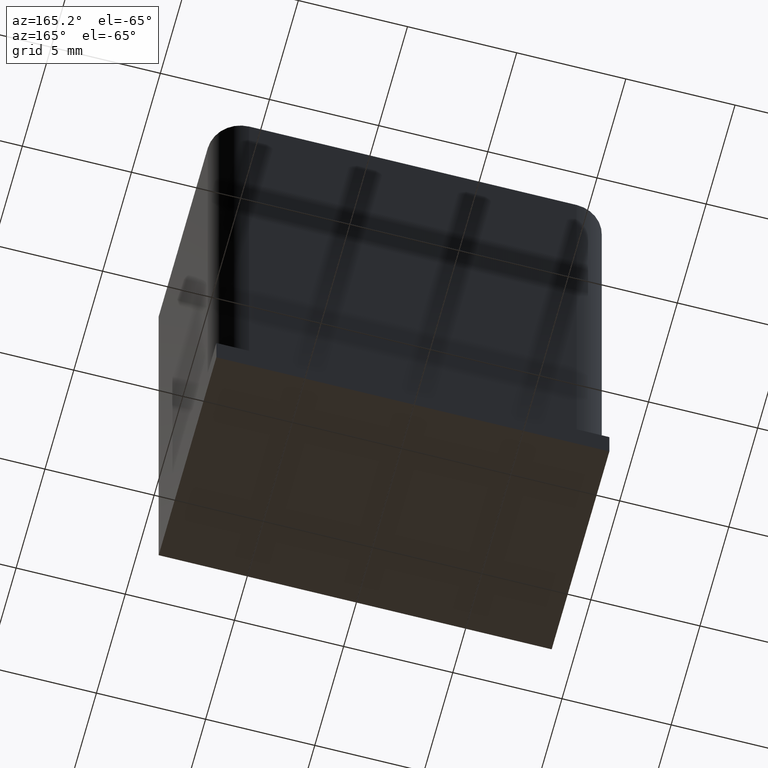
[diagram: clean part render]
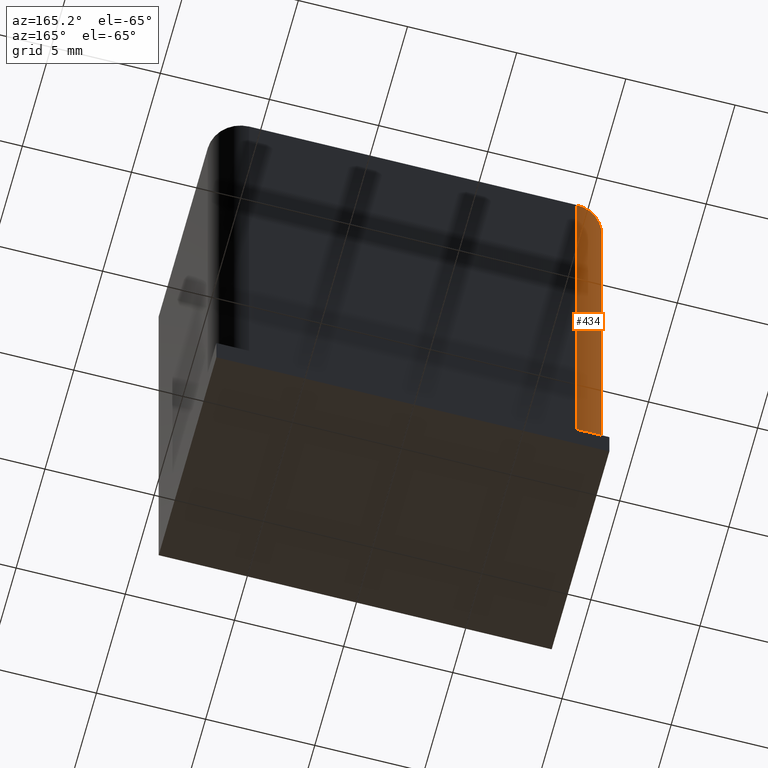
[diagram: same view with one face highlighted and labeled with its STEP entity id]
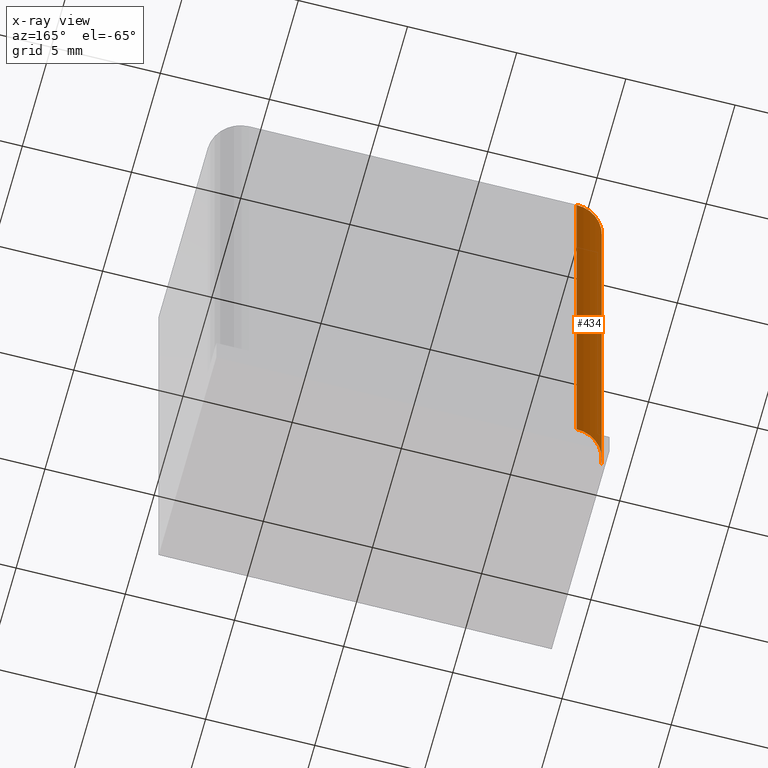
[diagram: x-ray of the same camera — body ghosted, the highlighted face saturated]
A machine part, auxiliary view. The second image highlights one B-rep face of the part: STEP entity #434.
The next image is the same camera in x-ray: the body ghosted, the highlighted face saturated — about 0% of this face is hidden behind the body in this view.
In plain terms, the highlighted cylindrical surface (edge-blend (fillet) strip) has radius 1.5 mm, axis along (0, 0, 1).
Its self-contained STEP definition (entity closure, byte-faithful):
#61=FACE_OUTER_BOUND('',#91,.T.);
#91=EDGE_LOOP('',(#345,#346,#347,#348));
#123=LINE('',#728,#170);
#124=LINE('',#731,#171);
#170=VECTOR('',#604,10.);
#171=VECTOR('',#607,10.);
#208=CIRCLE('',#531,1.5);
#209=CIRCLE('',#532,1.5);
#226=VERTEX_POINT('',#724);
#227=VERTEX_POINT('',#725);
#228=VERTEX_POINT('',#727);
#229=VERTEX_POINT('',#729);
#271=EDGE_CURVE('',#226,#227,#208,.T.);
#272=EDGE_CURVE('',#226,#228,#123,.T.);
#273=EDGE_CURVE('',#229,#228,#209,.T.);
#274=EDGE_CURVE('',#227,#229,#124,.T.);
#345=ORIENTED_EDGE('',*,*,#271,.F.);
#346=ORIENTED_EDGE('',*,*,#272,.T.);
#347=ORIENTED_EDGE('',*,*,#273,.F.);
#348=ORIENTED_EDGE('',*,*,#274,.F.);
#424=CYLINDRICAL_SURFACE('',#530,1.5);
#434=ADVANCED_FACE('',(#61),#424,.T.);
#530=AXIS2_PLACEMENT_3D('',#723,#600,#601);
#531=AXIS2_PLACEMENT_3D('',#726,#602,#603);
#532=AXIS2_PLACEMENT_3D('',#730,#605,#606);
#600=DIRECTION('center_axis',(0.,0.,1.));
#601=DIRECTION('ref_axis',(7.40148683083437E-16,-1.,0.));
#602=DIRECTION('center_axis',(0.,0.,-1.));
#603=DIRECTION('ref_axis',(7.40148683083437E-16,-1.,0.));
#604=DIRECTION('',(0.,0.,1.));
#605=DIRECTION('center_axis',(0.,0.,1.));
#606=DIRECTION('ref_axis',(7.40148683083437E-16,-1.,0.));
#607=DIRECTION('',(0.,0.,1.));
#723=CARTESIAN_POINT('Origin',(-7.5,0.500000000000004,0.));
#724=CARTESIAN_POINT('',(-9.,0.500000000000004,0.));
#725=CARTESIAN_POINT('',(-7.5,2.,0.));
#726=CARTESIAN_POINT('Origin',(-7.5,0.500000000000004,0.));
#727=CARTESIAN_POINT('',(-9.,0.500000000000004,23.5));
#728=CARTESIAN_POINT('',(-9.,0.500000000000004,0.));
#729=CARTESIAN_POINT('',(-7.5,2.,23.5));
#730=CARTESIAN_POINT('Origin',(-7.5,0.500000000000004,23.5));
#731=CARTESIAN_POINT('',(-7.5,2.,0.));